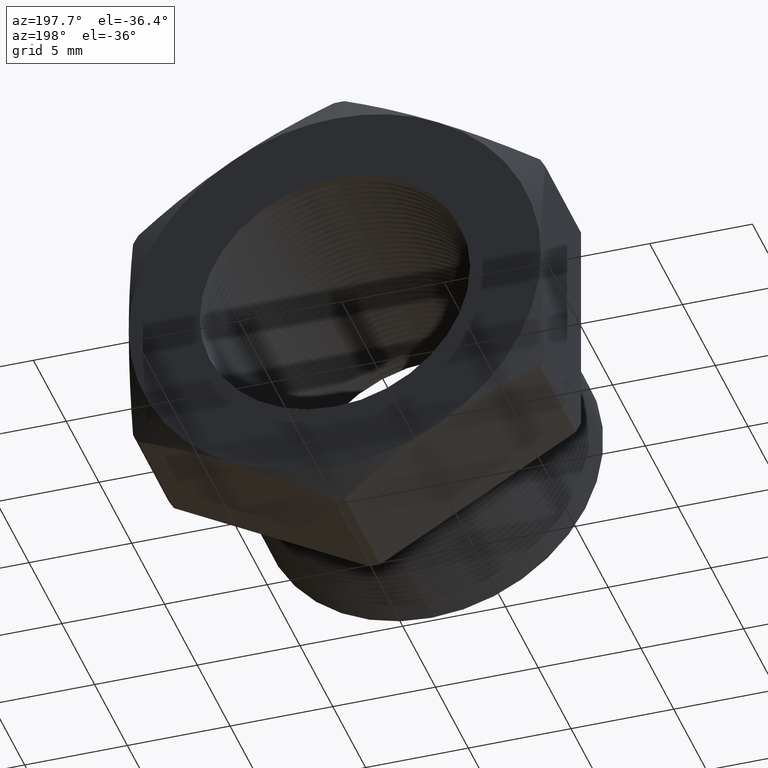
[diagram: clean part render]
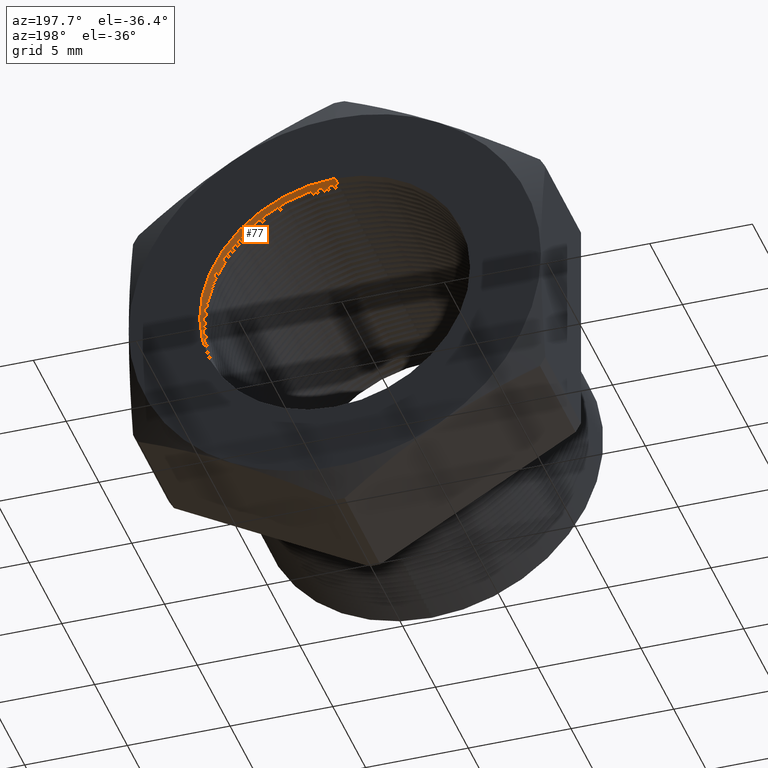
[diagram: same view with one face highlighted and labeled with its STEP entity id]
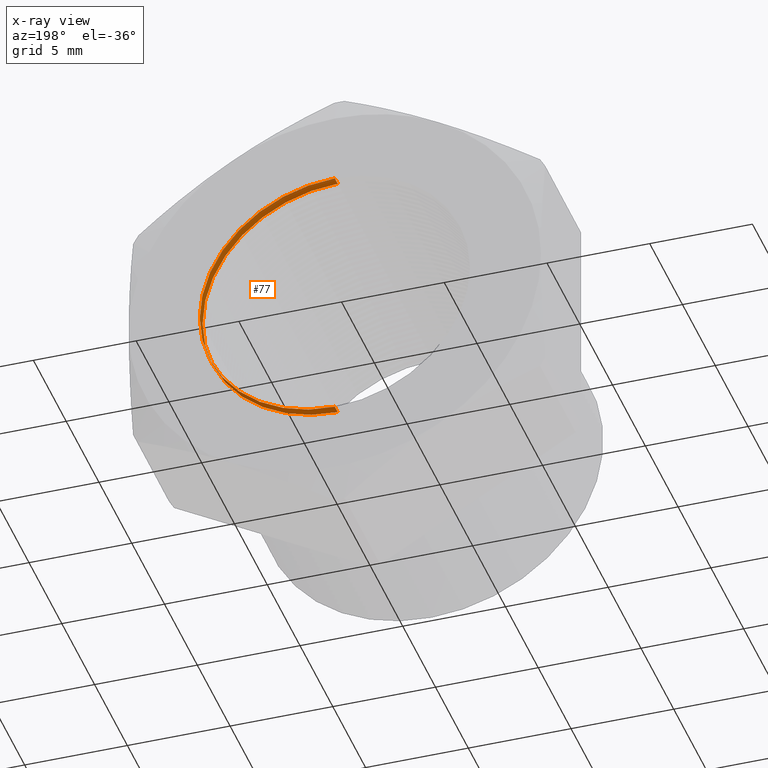
[diagram: x-ray of the same camera — body ghosted, the highlighted face saturated]
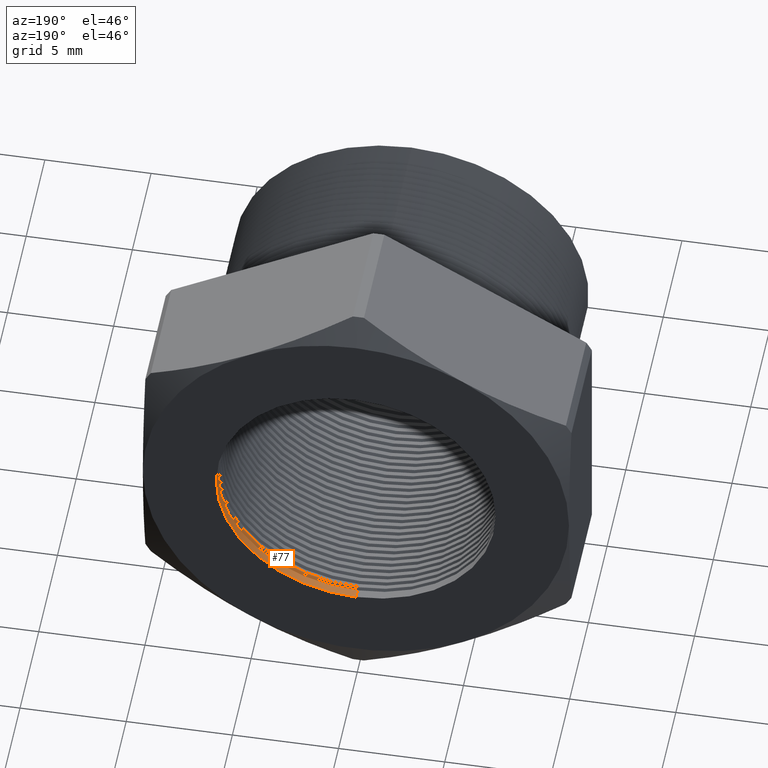
[diagram: same view with one face highlighted and labeled with its STEP entity id]
A machine part, auxiliary view. The second image highlights one B-rep face of the part: STEP entity #77.
The next image is the same camera in x-ray: the body ghosted, the highlighted face saturated — about 0% of this face is hidden behind the body in this view.
A second angle (auxiliary view) of the same face is appended — the face is thin or edge-on in the first view.
In plain terms, the highlighted cylindrical surface (partial cylindrical patch) has radius 6.5783 mm, axis along (-0, -1, -0).
Its self-contained STEP definition (entity closure, byte-faithful):
#73 = ORIENTED_EDGE ( 'NONE', *, *, #2582, .T. ) ;
#74 = ORIENTED_EDGE ( 'NONE', *, *, #98, .F. ) ;
#76 = EDGE_LOOP ( 'NONE', ( #82, #81, #73, #74 ) ) ;
#77 = ADVANCED_FACE ( 'NONE', ( #2923 ), #2983, .F. ) ;
#81 = ORIENTED_EDGE ( 'NONE', *, *, #1770, .F. ) ;
#82 = ORIENTED_EDGE ( 'NONE', *, *, #2579, .F. ) ;
#98 = EDGE_CURVE ( 'NONE', #2476, #2473, #3013, .T. ) ;
#1770 = EDGE_CURVE ( 'NONE', #2577, #2576, #5888, .T. ) ;
#2473 = VERTEX_POINT ( 'NONE', #7273 ) ;
#2476 = VERTEX_POINT ( 'NONE', #7269 ) ;
#2576 = VERTEX_POINT ( 'NONE', #7455 ) ;
#2577 = VERTEX_POINT ( 'NONE', #7454 ) ;
#2579 = EDGE_CURVE ( 'NONE', #2576, #2476, #7453, .T. ) ;
#2582 = EDGE_CURVE ( 'NONE', #2577, #2473, #7449, .T. ) ;
#2923 = FACE_OUTER_BOUND ( 'NONE', #76, .T. ) ;
#2955 = CARTESIAN_POINT ( 'NONE',  ( 0.0000000000000000000, 0.3903219653570460000, 0.0000000000000000000 ) ) ;
#2979 = DIRECTION ( 'NONE',  ( 0.0000000000000000000, 0.0000000000000000000, -1.000000000000000000 ) ) ;
#2980 = DIRECTION ( 'NONE',  ( -0.0000000000000000000, -1.000000000000000000, -0.0000000000000000000 ) ) ;
#2981 = CARTESIAN_POINT ( 'NONE',  ( 0.0000000000000000000, 0.0000000000000000000, 0.0000000000000000000 ) ) ;
#2982 = AXIS2_PLACEMENT_3D ( 'NONE', #2981, #2980, #2979 ) ;
#2983 = CYLINDRICAL_SURFACE ( 'NONE', #2982, 0.2589880461203001900 ) ;
#3010 = DIRECTION ( 'NONE',  ( 0.0000000000000000000, 0.0000000000000000000, -1.000000000000000000 ) ) ;
#3011 = DIRECTION ( 'NONE',  ( -0.0000000000000000000, 1.000000000000000000, -0.0000000000000000000 ) ) ;
#3012 = AXIS2_PLACEMENT_3D ( 'NONE', #2955, #3011, #3010 ) ;
#3013 = CIRCLE ( 'NONE', #3012, 0.2589880461203001900 ) ;
#5879 = DIRECTION ( 'NONE',  ( 0.0000000000000000000, 0.0000000000000000000, -1.000000000000000000 ) ) ;
#5880 = DIRECTION ( 'NONE',  ( -0.0000000000000000000, -1.000000000000000000, -0.0000000000000000000 ) ) ;
#5881 = CARTESIAN_POINT ( 'NONE',  ( 0.0000000000000000000, 0.4075548905829479200, 0.0000000000000000000 ) ) ;
#5882 = AXIS2_PLACEMENT_3D ( 'NONE', #5881, #5880, #5879 ) ;
#5888 = CIRCLE ( 'NONE', #5882, 0.2589880461203001900 ) ;
#7269 = CARTESIAN_POINT ( 'NONE',  ( 3.171688816986526800E-017, 0.3903219653570460000, 0.2589880461203001900 ) ) ;
#7273 = CARTESIAN_POINT ( 'NONE',  ( 0.0000000000000000000, 0.3903219653570460000, -0.2589880461203001900 ) ) ;
#7446 = DIRECTION ( 'NONE',  ( -0.0000000000000000000, -1.000000000000000000, -0.0000000000000000000 ) ) ;
#7447 = VECTOR ( 'NONE', #7446, 39.37007874015748100 ) ;
#7448 = CARTESIAN_POINT ( 'NONE',  ( 0.0000000000000000000, 0.0000000000000000000, -0.2589880461203001900 ) ) ;
#7449 = LINE ( 'NONE', #7448, #7447 ) ;
#7450 = DIRECTION ( 'NONE',  ( -0.0000000000000000000, -1.000000000000000000, -0.0000000000000000000 ) ) ;
#7451 = VECTOR ( 'NONE', #7450, 39.37007874015748100 ) ;
#7452 = CARTESIAN_POINT ( 'NONE',  ( 3.171688816986526800E-017, 0.0000000000000000000, 0.2589880461203001900 ) ) ;
#7453 = LINE ( 'NONE', #7452, #7451 ) ;
#7454 = CARTESIAN_POINT ( 'NONE',  ( 0.0000000000000000000, 0.4075548905829479200, -0.2589880461203001900 ) ) ;
#7455 = CARTESIAN_POINT ( 'NONE',  ( 3.171688816986526800E-017, 0.4075548905829479200, 0.2589880461203001900 ) ) ;